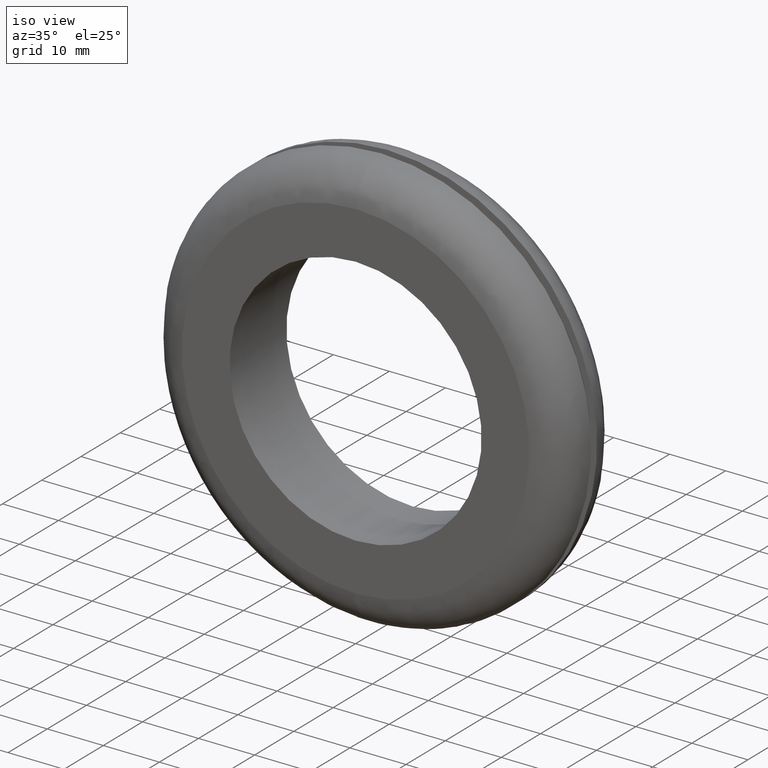
[diagram: clean part render]
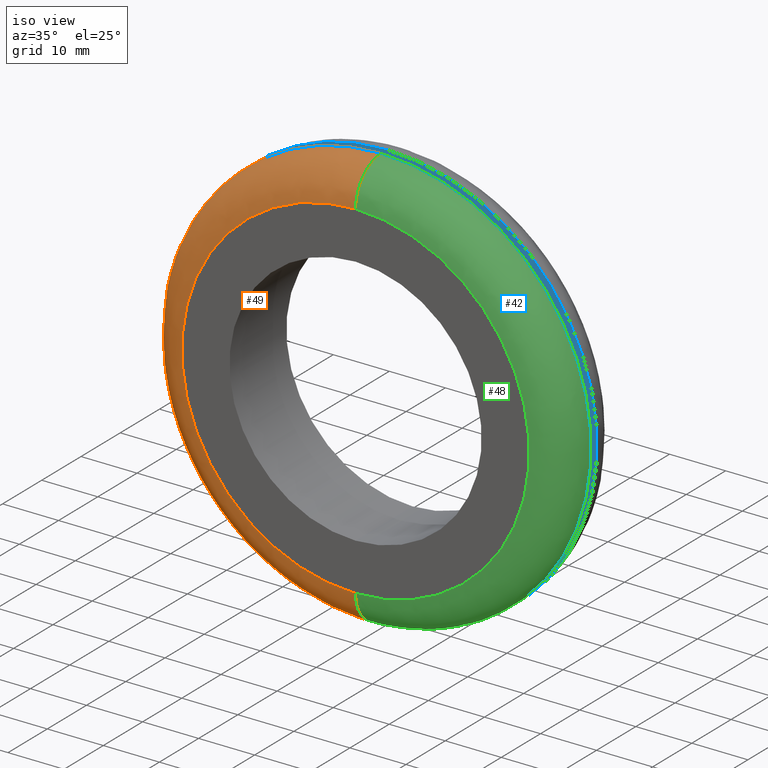
[diagram: same view with three faces highlighted in distinct colors, each labeled with its STEP entity id]
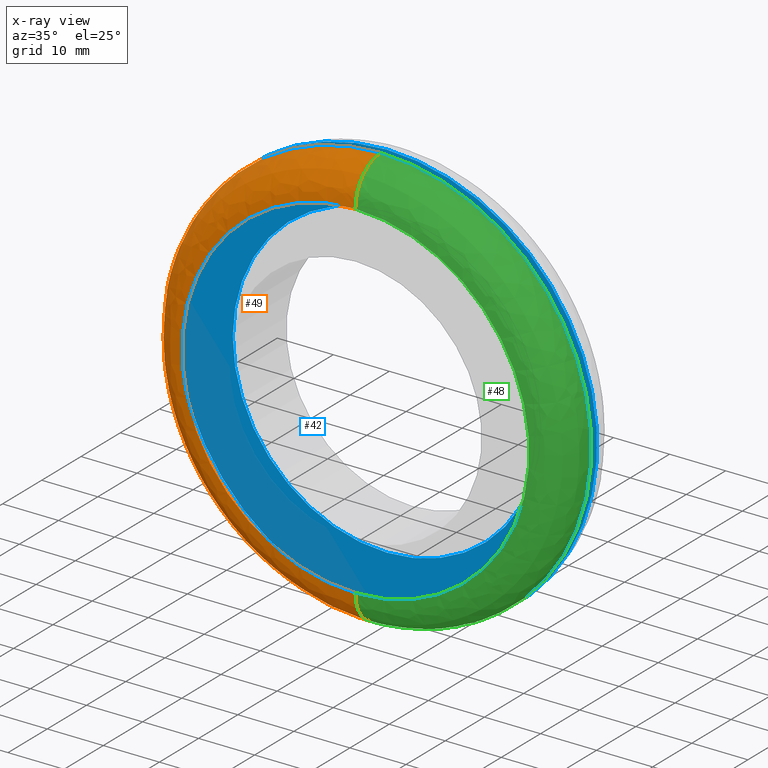
[diagram: x-ray of the same camera — body ghosted, the three highlighted faces saturated]
A machine part, iso view with three faces highlighted in distinct colors.
The next image is the same camera in x-ray (body ghosted, the three faces saturated) — at least one of them is partly hidden behind the body in this view.
Their STEP definitions:

[orange] entity #49 — the highlighted face is a freeform B-spline surface patch.
#49=ADVANCED_FACE('',(#147),#146,.T.);
#146=( BOUNDED_SURFACE() B_SPLINE_SURFACE( 2,2,((#246,#247,#248,#249,#250),(#251,#252,#253,#254,#255),(#256,#257,#258,#259,#260),(#261,#262,#263,#264,#265),(#266,#267,#268,#269,#270)), .UNSPECIFIED.,.F.,.F.,.F.) B_SPLINE_SURFACE_WITH_KNOTS((3,2,3),(3,2,3),(0.00000000000E+000,5.00000000000E-001,1.00000000000E+000),(0.00000000000E+000,5.00000000000E-001,1.00000000000E+000), .UNSPECIFIED. ) GEOMETRIC_REPRESENTATION_ITEM() RATIONAL_B_SPLINE_SURFACE(((1.00000000000E+000,7.07106781186E-001,1.00000000000E+000,7.07106781186E-001,1.00000000000E+000),(7.07106781187E-001,5.00000000000E-001,7.07106781187E-001,5.00000000000E-001,7.07106781187E-001),(1.00000000000E+000,7.07106781186E-001,1.00000000000E+000,7.07106781186E-001,1.00000000000E+000),(7.07106781187E-001,5.00000000000E-001,7.07106781187E-001,5.00000000000E-001,7.07106781187E-001),(1.00000000000E+000,7.07106781186E-001,1.00000000000E+000,7.07106781186E-001,1.00000000000E+000))) REPRESENTATION_ITEM('') SURFACE() );
#147=FACE_OUTER_BOUND('',#271,.T.);
#246=CARTESIAN_POINT('',(2.38687855302E-014,6.50000000000E+000,-2.45000000000E+001));
#247=CARTESIAN_POINT('',(-1.60437135093E-013,1.36912062397E-012,-2.45000000000E+001));
#248=CARTESIAN_POINT('',(-1.88102074939E-013,-4.79616346638E-014,-3.10000000000E+001));
#249=CARTESIAN_POINT('',(-2.15767014786E-013,-1.46332617149E-012,-3.75000000000E+001));
#250=CARTESIAN_POINT('',(-3.14610941628E-014,6.50000000000E+000,-3.75000000000E+001));
#251=CARTESIAN_POINT('',(-2.45000000000E+001,6.50000000000E+000,-2.45000000000E+001));
#252=CARTESIAN_POINT('',(-2.45000000000E+001,2.06367614818E-012,-2.45000000000E+001));
#253=CARTESIAN_POINT('',(-3.10000000000E+001,8.31290142199E-013,-3.10000000000E+001));
#254=CARTESIAN_POINT('',(-3.75000000000E+001,-3.99288424693E-013,-3.75000000000E+001));
#255=CARTESIAN_POINT('',(-3.75000000000E+001,6.50000000000E+000,-3.75000000000E+001));
#256=CARTESIAN_POINT('',(-2.45000000000E+001,6.50000000000E+000,1.02775350169E-013));
#257=CARTESIAN_POINT('',(-2.45000000000E+001,2.06372952769E-012,1.02775350169E-013));
#258=CARTESIAN_POINT('',(-3.10000000000E+001,8.31335000839E-013,1.30042279806E-013));
#259=CARTESIAN_POINT('',(-3.75000000000E+001,-3.99431521489E-013,1.57309209443E-013));
#260=CARTESIAN_POINT('',(-3.75000000000E+001,6.50000000000E+000,1.57309209443E-013));
#261=CARTESIAN_POINT('',(-2.45000000000E+001,6.50000000000E+000,2.45000000000E+001));
#262=CARTESIAN_POINT('',(-2.45000000000E+001,2.06367614818E-012,2.45000000000E+001));
#263=CARTESIAN_POINT('',(-3.10000000000E+001,8.31290142199E-013,3.10000000000E+001));
#264=CARTESIAN_POINT('',(-3.75000000000E+001,-3.99288424693E-013,3.75000000000E+001));
#265=CARTESIAN_POINT('',(-3.75000000000E+001,6.50000000000E+000,3.75000000000E+001));
#266=CARTESIAN_POINT('',(2.29419485869E-013,6.50000000000E+000,2.45000000000E+001));
#267=CARTESIAN_POINT('',(4.51135652458E-014,1.36912062397E-012,2.45000000000E+001));
#268=CARTESIAN_POINT('',(7.19824846727E-014,-4.79616346638E-014,3.10000000000E+001));
#269=CARTESIAN_POINT('',(9.88514040997E-014,-1.46332617149E-012,3.75000000000E+001));
#270=CARTESIAN_POINT('',(2.83157324723E-013,6.50000000000E+000,3.75000000000E+001));
#271=EDGE_LOOP('',(#360,#361,#362,#363));
#360=ORIENTED_EDGE('',*,*,#385,.F.);
#361=ORIENTED_EDGE('',*,*,#392,.T.);
#362=ORIENTED_EDGE('',*,*,#372,.F.);
#363=ORIENTED_EDGE('',*,*,#393,.F.);
#372=EDGE_CURVE('',#396,#397,#398,.T.);
#385=EDGE_CURVE('',#481,#480,#488,.T.);
#392=EDGE_CURVE('',#481,#397,#532,.T.);
#393=EDGE_CURVE('',#480,#396,#538,.T.);
#396=VERTEX_POINT('',#556);
#397=VERTEX_POINT('',#557);
#398=CIRCLE('',#561,3.75000000000E+001);
#480=VERTEX_POINT('',#616);
#481=VERTEX_POINT('',#617);
#488=CIRCLE('',#625,3.10000000000E+001);
#532=(BOUNDED_CURVE() B_SPLINE_CURVE(2,(#644,#645,#646),.UNSPECIFIED.,.F.,.F.) B_SPLINE_CURVE_WITH_KNOTS((3,3),(5.00000000000E-001,1.00000000000E+000),.UNSPECIFIED.) CURVE() GEOMETRIC_REPRESENTATION_ITEM() RATIONAL_B_SPLINE_CURVE((1.00000000000E+000,7.07106781186E-001,1.00000000000E+000)) REPRESENTATION_ITEM('') );
#538=(BOUNDED_CURVE() B_SPLINE_CURVE(3,(#647,#648,#649,#650,#651),.UNSPECIFIED.,.F.,.F.) B_SPLINE_CURVE_WITH_KNOTS((4,1,4),(4.99999994865E-001,7.49999997043E-001,1.00000000000E+000),.UNSPECIFIED.) CURVE() GEOMETRIC_REPRESENTATION_ITEM() RATIONAL_B_SPLINE_CURVE((1.00000000000E+000,1.00000000000E+000,1.00000000000E+000,1.00000000000E+000,1.00000000000E+000)) REPRESENTATION_ITEM('') );
#556=CARTESIAN_POINT('',(4.59227382683E-015,6.50000000000E+000,-3.75000000000E+001));
#557=CARTESIAN_POINT('',(2.36847578587E-015,6.50000000000E+000,3.75000000000E+001));
#558=CARTESIAN_POINT('',(0.00000000000E+000,6.50000000000E+000,0.00000000000E+000));
#559=DIRECTION('',(0.00000000000E+000,1.00000000000E+000,-0.00000000000E+000));
#560=DIRECTION('',(-0.00000000000E+000,-0.00000000000E+000,-1.00000000000E+000));
#561=AXIS2_PLACEMENT_3D('',#558,#559,#560);
#616=CARTESIAN_POINT('',(-3.79627969685E-015,0.00000000000E+000,-3.10000000000E+001));
#617=CARTESIAN_POINT('',(-1.18423789293E-015,0.00000000000E+000,3.10000000000E+001));
#622=CARTESIAN_POINT('',(0.00000000000E+000,0.00000000000E+000,0.00000000000E+000));
#623=DIRECTION('',(0.00000000000E+000,-1.00000000000E+000,0.00000000000E+000));
#624=DIRECTION('',(-0.00000000000E+000,-0.00000000000E+000,-1.00000000000E+000));
#625=AXIS2_PLACEMENT_3D('',#622,#623,#624);
#644=CARTESIAN_POINT('',(7.95752948274E-014,-4.79616346638E-014,3.10000000000E+001));
#645=CARTESIAN_POINT('',(1.08036255093E-013,-1.46332617149E-012,3.75000000000E+001));
#646=CARTESIAN_POINT('',(2.92342175716E-013,6.50000000000E+000,3.75000000000E+001));
#647=CARTESIAN_POINT('',(-1.93030776141E-013,-4.72760261811E-014,-3.09999999056E+001));
#648=CARTESIAN_POINT('',(-2.00707431886E-013,-1.44564100224E-002,-3.26864277764E+001));
#649=CARTESIAN_POINT('',(-1.75828641591E-013,1.40805391706E+000,-3.60919460036E+001));
#650=CARTESIAN_POINT('',(-8.72363661241E-014,4.81357212368E+000,-3.75144563858E+001));
#651=CARTESIAN_POINT('',(-4.02640883597E-014,6.50000000000E+000,-3.75000000000E+001));

[blue] entity #42 — the highlighted planar face has unit normal (0, -1, 0).
#42=ADVANCED_FACE('',(#75,#76),#74,.T.);
#74=PLANE('',#191);
#75=FACE_OUTER_BOUND('',#192,.T.);
#76=FACE_BOUND('',#193,.T.);
#188=CARTESIAN_POINT('',(-7.49519052838E+001,8.00000000000E+000,4.75000000000E+001));
#189=DIRECTION('',(0.00000000000E+000,-1.00000000000E+000,0.00000000000E+000));
#190=DIRECTION('',(0.00000000000E+000,0.00000000000E+000,-1.00000000000E+000));
#191=AXIS2_PLACEMENT_3D('',#188,#189,#190);
#192=EDGE_LOOP('',(#332,#333));
#193=EDGE_LOOP('',(#334,#335));
#332=ORIENTED_EDGE('',*,*,#380,.F.);
#333=ORIENTED_EDGE('',*,*,#381,.F.);
#334=ORIENTED_EDGE('',*,*,#382,.T.);
#335=ORIENTED_EDGE('',*,*,#383,.T.);
#380=EDGE_CURVE('',#452,#453,#454,.T.);
#381=EDGE_CURVE('',#453,#452,#460,.T.);
#382=EDGE_CURVE('',#466,#467,#468,.T.);
#383=EDGE_CURVE('',#467,#466,#474,.T.);
#452=VERTEX_POINT('',#596);
#453=VERTEX_POINT('',#597);
#454=CIRCLE('',#601,3.75000000000E+001);
#460=CIRCLE('',#605,3.75000000000E+001);
#466=VERTEX_POINT('',#606);
#467=VERTEX_POINT('',#607);
#468=CIRCLE('',#611,2.75000000000E+001);
#474=CIRCLE('',#615,2.75000000000E+001);
#596=CARTESIAN_POINT('',(0.00000000000E+000,8.00000000000E+000,-3.75000000000E+001));
#597=CARTESIAN_POINT('',(-6.96074961270E-015,8.00000000000E+000,3.75000000000E+001));
#598=CARTESIAN_POINT('',(0.00000000000E+000,8.00000000000E+000,0.00000000000E+000));
#599=DIRECTION('',(0.00000000000E+000,1.00000000000E+000,0.00000000000E+000));
#600=DIRECTION('',(-6.31593542899E-017,-0.00000000000E+000,1.00000000000E+000));
#601=AXIS2_PLACEMENT_3D('',#598,#599,#600);
#602=CARTESIAN_POINT('',(0.00000000000E+000,8.00000000000E+000,0.00000000000E+000));
#603=DIRECTION('',(0.00000000000E+000,1.00000000000E+000,0.00000000000E+000));
#604=DIRECTION('',(-6.31593542899E-017,-0.00000000000E+000,1.00000000000E+000));
#605=AXIS2_PLACEMENT_3D('',#602,#603,#604);
#606=CARTESIAN_POINT('',(3.36766747301E-015,8.00000000000E+000,-2.75000000000E+001));
#607=CARTESIAN_POINT('',(1.18423789293E-015,8.00000000000E+000,2.75000000000E+001));
#608=CARTESIAN_POINT('',(0.00000000000E+000,8.00000000000E+000,0.00000000000E+000));
#609=DIRECTION('',(0.00000000000E+000,1.00000000000E+000,-0.00000000000E+000));
#610=DIRECTION('',(-0.00000000000E+000,-0.00000000000E+000,-1.00000000000E+000));
#611=AXIS2_PLACEMENT_3D('',#608,#609,#610);
#612=CARTESIAN_POINT('',(0.00000000000E+000,8.00000000000E+000,0.00000000000E+000));
#613=DIRECTION('',(0.00000000000E+000,1.00000000000E+000,-0.00000000000E+000));
#614=DIRECTION('',(-0.00000000000E+000,-0.00000000000E+000,-1.00000000000E+000));
#615=AXIS2_PLACEMENT_3D('',#612,#613,#614);

[green] entity #48 — the highlighted face is a freeform B-spline surface patch.
#48=ADVANCED_FACE('',(#137),#136,.T.);
#136=( BOUNDED_SURFACE() B_SPLINE_SURFACE( 2,2,((#220,#221,#222,#223,#224),(#225,#226,#227,#228,#229),(#230,#231,#232,#233,#234),(#235,#236,#237,#238,#239),(#240,#241,#242,#243,#244)), .UNSPECIFIED.,.F.,.F.,.F.) B_SPLINE_SURFACE_WITH_KNOTS((3,2,3),(3,2,3),(0.00000000000E+000,5.00000000000E-001,1.00000000000E+000),(0.00000000000E+000,5.00000000000E-001,1.00000000000E+000), .UNSPECIFIED. ) GEOMETRIC_REPRESENTATION_ITEM() RATIONAL_B_SPLINE_SURFACE(((1.00000000000E+000,7.07106781186E-001,1.00000000000E+000,7.07106781186E-001,1.00000000000E+000),(7.07106781187E-001,5.00000000000E-001,7.07106781187E-001,5.00000000000E-001,7.07106781187E-001),(1.00000000000E+000,7.07106781186E-001,1.00000000000E+000,7.07106781186E-001,1.00000000000E+000),(7.07106781187E-001,5.00000000000E-001,7.07106781187E-001,5.00000000000E-001,7.07106781187E-001),(1.00000000000E+000,7.07106781186E-001,1.00000000000E+000,7.07106781186E-001,1.00000000000E+000))) REPRESENTATION_ITEM('') SURFACE() );
#137=FACE_OUTER_BOUND('',#245,.T.);
#220=CARTESIAN_POINT('',(2.35420255184E-013,6.50000000000E+000,2.45000000000E+001));
#221=CARTESIAN_POINT('',(5.11143345616E-014,1.36912062397E-012,2.45000000000E+001));
#222=CARTESIAN_POINT('',(7.95752948274E-014,-4.79616346638E-014,3.10000000000E+001));
#223=CARTESIAN_POINT('',(1.08036255093E-013,-1.46332617149E-012,3.75000000000E+001));
#224=CARTESIAN_POINT('',(2.92342175716E-013,6.50000000000E+000,3.75000000000E+001));
#225=CARTESIAN_POINT('',(2.45000000000E+001,6.50000000000E+000,2.45000000000E+001));
#226=CARTESIAN_POINT('',(2.45000000000E+001,6.74565099767E-013,2.45000000000E+001));
#227=CARTESIAN_POINT('',(3.10000000000E+001,-9.27213411527E-013,3.10000000000E+001));
#228=CARTESIAN_POINT('',(3.75000000000E+001,-2.52736391829E-012,3.75000000000E+001));
#229=CARTESIAN_POINT('',(3.75000000000E+001,6.50000000000E+000,3.75000000000E+001));
#230=CARTESIAN_POINT('',(2.45000000000E+001,6.50000000000E+000,-1.05775734827E-013));
#231=CARTESIAN_POINT('',(2.45000000000E+001,6.74511720251E-013,-1.05775734827E-013));
#232=CARTESIAN_POINT('',(3.10000000000E+001,-9.27258270167E-013,-1.33838684883E-013));
#233=CARTESIAN_POINT('',(3.75000000000E+001,-2.52722082150E-012,-1.61901634939E-013));
#234=CARTESIAN_POINT('',(3.75000000000E+001,6.50000000000E+000,-1.61901634939E-013));
#235=CARTESIAN_POINT('',(2.45000000000E+001,6.50000000000E+000,-2.45000000000E+001));
#236=CARTESIAN_POINT('',(2.45000000000E+001,6.74565099767E-013,-2.45000000000E+001));
#237=CARTESIAN_POINT('',(3.10000000000E+001,-9.27213411527E-013,-3.10000000000E+001));
#238=CARTESIAN_POINT('',(3.75000000000E+001,-2.52736391829E-012,-3.75000000000E+001));
#239=CARTESIAN_POINT('',(3.75000000000E+001,6.50000000000E+000,-3.75000000000E+001));
#240=CARTESIAN_POINT('',(2.38687855302E-014,6.50000000000E+000,-2.45000000000E+001));
#241=CARTESIAN_POINT('',(-1.60437135093E-013,1.36912062397E-012,-2.45000000000E+001));
#242=CARTESIAN_POINT('',(-1.88102074939E-013,-4.79616346638E-014,-3.10000000000E+001));
#243=CARTESIAN_POINT('',(-2.15767014786E-013,-1.46332617149E-012,-3.75000000000E+001));
#244=CARTESIAN_POINT('',(-3.14610941628E-014,6.50000000000E+000,-3.75000000000E+001));
#245=EDGE_LOOP('',(#356,#357,#358,#359));
#356=ORIENTED_EDGE('',*,*,#373,.F.);
#357=ORIENTED_EDGE('',*,*,#392,.F.);
#358=ORIENTED_EDGE('',*,*,#384,.F.);
#359=ORIENTED_EDGE('',*,*,#393,.T.);
#373=EDGE_CURVE('',#397,#396,#404,.T.);
#384=EDGE_CURVE('',#480,#481,#482,.T.);
#392=EDGE_CURVE('',#481,#397,#532,.T.);
#393=EDGE_CURVE('',#480,#396,#538,.T.);
#396=VERTEX_POINT('',#556);
#397=VERTEX_POINT('',#557);
#404=CIRCLE('',#565,3.75000000000E+001);
#480=VERTEX_POINT('',#616);
#481=VERTEX_POINT('',#617);
#482=CIRCLE('',#621,3.10000000000E+001);
#532=(BOUNDED_CURVE() B_SPLINE_CURVE(2,(#644,#645,#646),.UNSPECIFIED.,.F.,.F.) B_SPLINE_CURVE_WITH_KNOTS((3,3),(5.00000000000E-001,1.00000000000E+000),.UNSPECIFIED.) CURVE() GEOMETRIC_REPRESENTATION_ITEM() RATIONAL_B_SPLINE_CURVE((1.00000000000E+000,7.07106781186E-001,1.00000000000E+000)) REPRESENTATION_ITEM('') );
#538=(BOUNDED_CURVE() B_SPLINE_CURVE(3,(#647,#648,#649,#650,#651),.UNSPECIFIED.,.F.,.F.) B_SPLINE_CURVE_WITH_KNOTS((4,1,4),(4.99999994865E-001,7.49999997043E-001,1.00000000000E+000),.UNSPECIFIED.) CURVE() GEOMETRIC_REPRESENTATION_ITEM() RATIONAL_B_SPLINE_CURVE((1.00000000000E+000,1.00000000000E+000,1.00000000000E+000,1.00000000000E+000,1.00000000000E+000)) REPRESENTATION_ITEM('') );
#556=CARTESIAN_POINT('',(4.59227382683E-015,6.50000000000E+000,-3.75000000000E+001));
#557=CARTESIAN_POINT('',(2.36847578587E-015,6.50000000000E+000,3.75000000000E+001));
#562=CARTESIAN_POINT('',(0.00000000000E+000,6.50000000000E+000,0.00000000000E+000));
#563=DIRECTION('',(0.00000000000E+000,1.00000000000E+000,-0.00000000000E+000));
#564=DIRECTION('',(-0.00000000000E+000,-0.00000000000E+000,-1.00000000000E+000));
#565=AXIS2_PLACEMENT_3D('',#562,#563,#564);
#616=CARTESIAN_POINT('',(-3.79627969685E-015,0.00000000000E+000,-3.10000000000E+001));
#617=CARTESIAN_POINT('',(-1.18423789293E-015,0.00000000000E+000,3.10000000000E+001));
#618=CARTESIAN_POINT('',(0.00000000000E+000,0.00000000000E+000,0.00000000000E+000));
#619=DIRECTION('',(0.00000000000E+000,-1.00000000000E+000,0.00000000000E+000));
#620=DIRECTION('',(-0.00000000000E+000,-0.00000000000E+000,-1.00000000000E+000));
#621=AXIS2_PLACEMENT_3D('',#618,#619,#620);
#644=CARTESIAN_POINT('',(7.95752948274E-014,-4.79616346638E-014,3.10000000000E+001));
#645=CARTESIAN_POINT('',(1.08036255093E-013,-1.46332617149E-012,3.75000000000E+001));
#646=CARTESIAN_POINT('',(2.92342175716E-013,6.50000000000E+000,3.75000000000E+001));
#647=CARTESIAN_POINT('',(-1.93030776141E-013,-4.72760261811E-014,-3.09999999056E+001));
#648=CARTESIAN_POINT('',(-2.00707431886E-013,-1.44564100224E-002,-3.26864277764E+001));
#649=CARTESIAN_POINT('',(-1.75828641591E-013,1.40805391706E+000,-3.60919460036E+001));
#650=CARTESIAN_POINT('',(-8.72363661241E-014,4.81357212368E+000,-3.75144563858E+001));
#651=CARTESIAN_POINT('',(-4.02640883597E-014,6.50000000000E+000,-3.75000000000E+001));